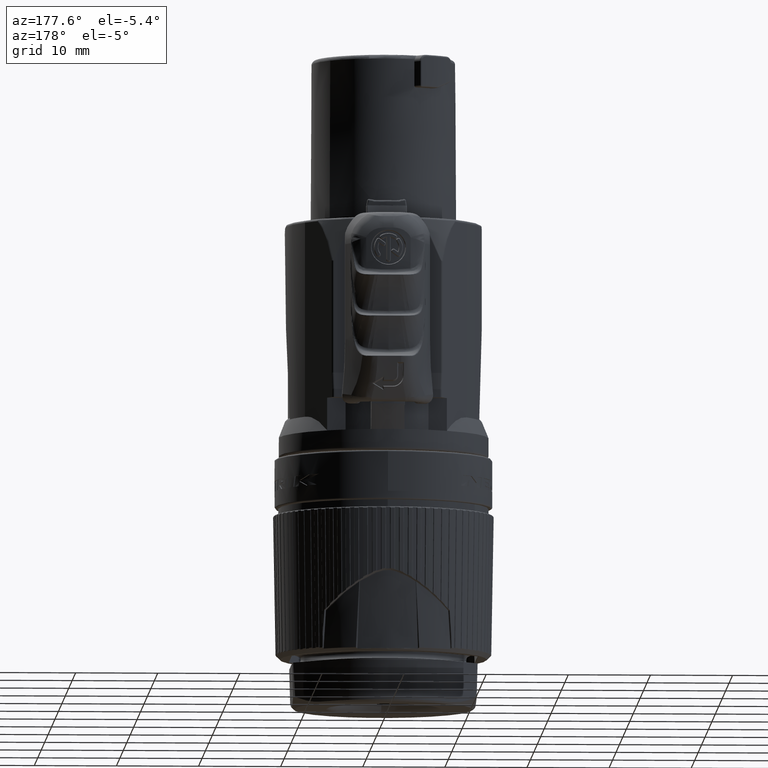
[diagram: clean part render]
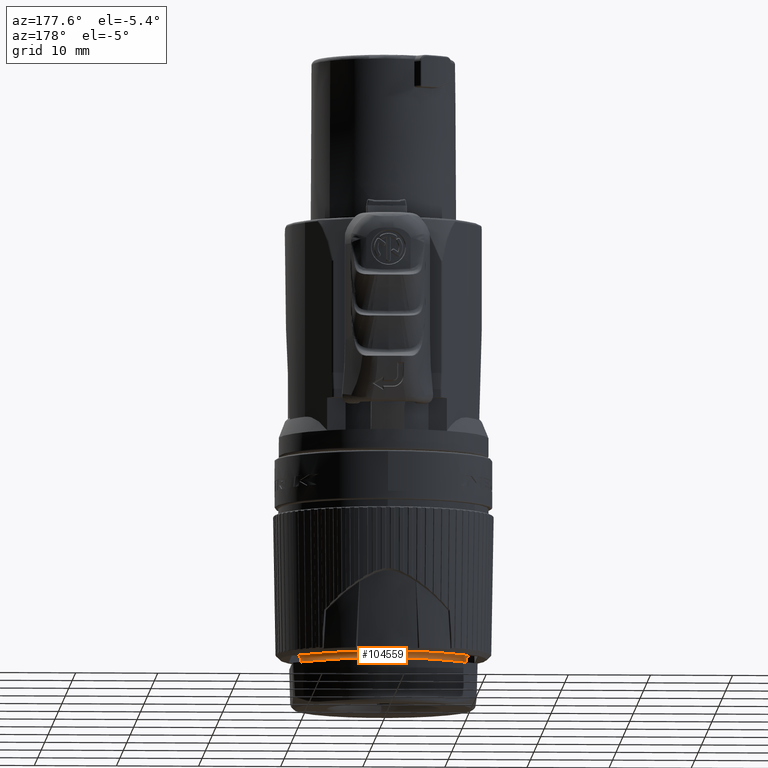
[diagram: same view with one face highlighted and labeled with its STEP entity id]
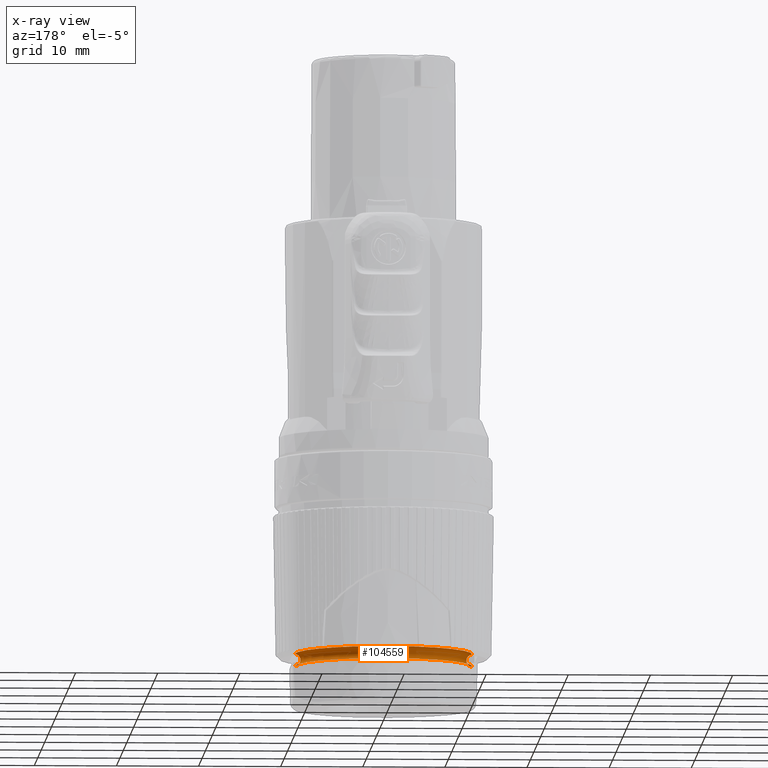
[diagram: x-ray of the same camera — body ghosted, the highlighted face saturated]
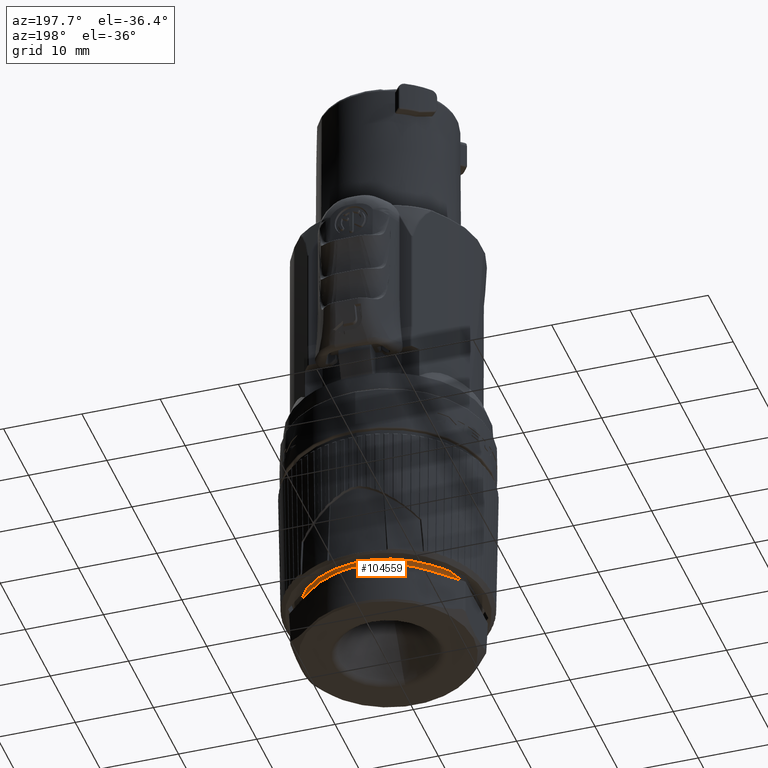
[diagram: same view with one face highlighted and labeled with its STEP entity id]
A machine part, auxiliary view. The second image highlights one B-rep face of the part: STEP entity #104559.
The next image is the same camera in x-ray: the body ghosted, the highlighted face saturated — about 0% of this face is hidden behind the body in this view.
A second angle (auxiliary view) of the same face is appended — the face is thin or edge-on in the first view.
In plain terms, the highlighted toroidal blend (fillet) surface has major radius 10.85 mm and minor (blend) radius 0.75 mm.
Its self-contained STEP definition (entity closure, byte-faithful):
#38277=CARTESIAN_POINT('',(0.E0,0.E0,-9.051039501539E0));
#38278=DIRECTION('',(0.E0,0.E0,-1.E0));
#38279=DIRECTION('',(-1.E0,-1.175818881836E-13,0.E0));
#38280=AXIS2_PLACEMENT_3D('',#38277,#38278,#38279);
#38559=CARTESIAN_POINT('',(1.085E1,0.E0,-9.8E0));
#38560=DIRECTION('',(0.E0,-1.E0,0.E0));
#38561=DIRECTION('',(-5.263157894737E-2,0.E0,9.986139979479E-1));
#38562=AXIS2_PLACEMENT_3D('',#38559,#38560,#38561);
#38564=CARTESIAN_POINT('',(-1.085E1,0.E0,-9.8E0));
#38565=DIRECTION('',(0.E0,1.E0,0.E0));
#38566=DIRECTION('',(5.263157894737E-2,0.E0,9.986139979479E-1));
#38567=AXIS2_PLACEMENT_3D('',#38564,#38565,#38566);
#38664=CARTESIAN_POINT('',(0.E0,0.E0,-1.055E1));
#38665=DIRECTION('',(0.E0,0.E0,-1.E0));
#38666=DIRECTION('',(-1.E0,0.E0,0.E0));
#38667=AXIS2_PLACEMENT_3D('',#38664,#38665,#38666);
#39913=CARTESIAN_POINT('',(-1.085E1,0.E0,-1.055E1));
#39914=CARTESIAN_POINT('',(1.085E1,0.E0,-1.055E1));
#39915=VERTEX_POINT('',#39913);
#39916=VERTEX_POINT('',#39914);
#39933=CARTESIAN_POINT('',(-1.081052631579E1,0.E0,-9.051039501539E0));
#39935=VERTEX_POINT('',#39933);
#39937=CARTESIAN_POINT('',(1.081052631579E1,0.E0,-9.051039501539E0));
#39938=VERTEX_POINT('',#39937);
#104547=CARTESIAN_POINT('',(0.E0,0.E0,-9.8E0));
#104548=DIRECTION('',(0.E0,0.E0,-1.E0));
#104549=DIRECTION('',(1.E0,0.E0,0.E0));
#104550=AXIS2_PLACEMENT_3D('',#104547,#104548,#104549);
#104551=TOROIDAL_SURFACE('',#104550,1.085E1,7.5E-1);
#104552=ORIENTED_EDGE('',*,*,#104085,.F.);
#104553=ORIENTED_EDGE('',*,*,#104542,.T.);
#104555=ORIENTED_EDGE('',*,*,#104554,.T.);
#104556=ORIENTED_EDGE('',*,*,#104538,.F.);
#104557=EDGE_LOOP('',(#104552,#104553,#104555,#104556));
#104558=FACE_OUTER_BOUND('',#104557,.F.);
#104559=ADVANCED_FACE('',(#104558),#104551,.F.);
#38281=CIRCLE('',#38280,1.081052631579E1);
#38563=CIRCLE('',#38562,7.5E-1);
#38568=CIRCLE('',#38567,7.5E-1);
#38668=CIRCLE('',#38667,1.085E1);
#104085=EDGE_CURVE('',#39935,#39938,#38281,.T.);
#104538=EDGE_CURVE('',#39938,#39916,#38563,.T.);
#104542=EDGE_CURVE('',#39935,#39915,#38568,.T.);
#104554=EDGE_CURVE('',#39915,#39916,#38668,.T.);